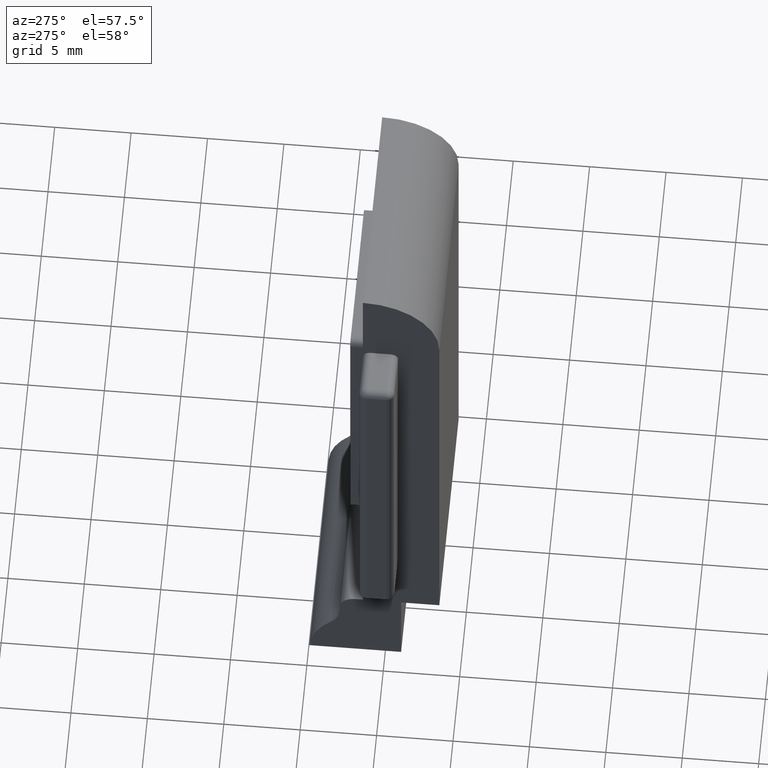
[diagram: clean part render]
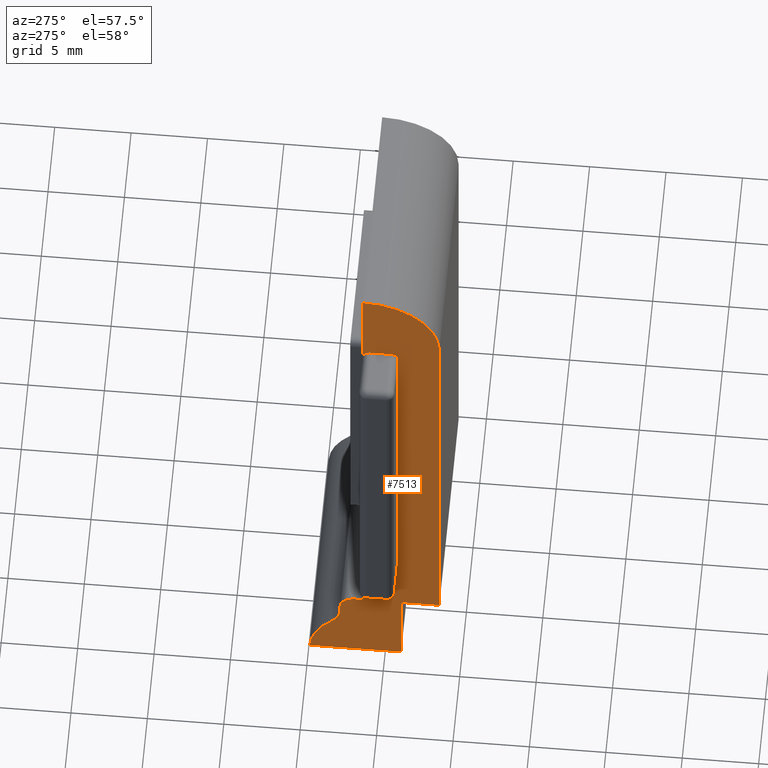
[diagram: same view with one face highlighted and labeled with its STEP entity id]
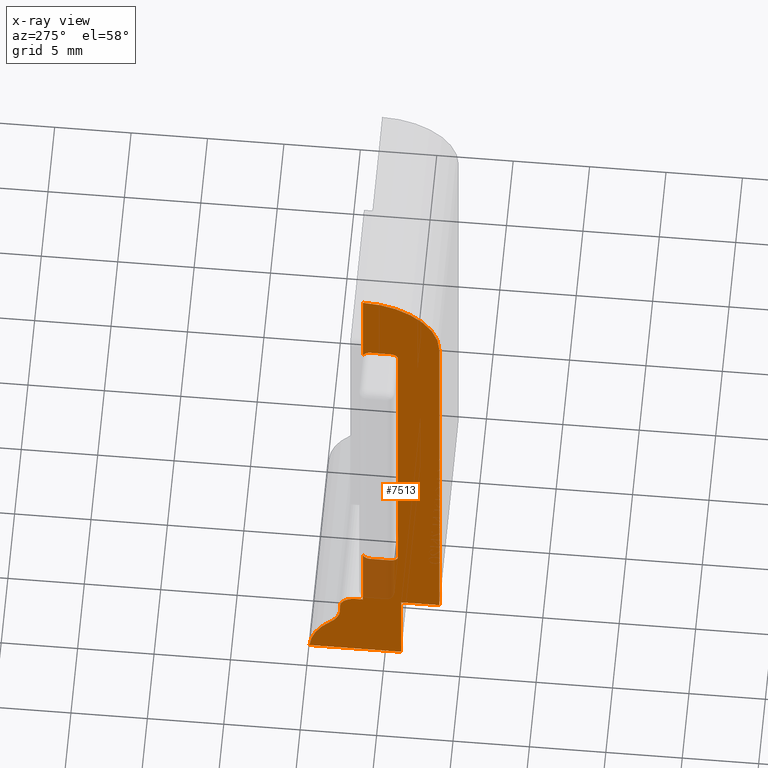
[diagram: x-ray of the same camera — body ghosted, the highlighted face saturated]
A machine part, auxiliary view. The second image highlights one B-rep face of the part: STEP entity #7513.
The next image is the same camera in x-ray: the body ghosted, the highlighted face saturated — about 7% of this face is hidden behind the body in this view.
In plain terms, the highlighted planar face has unit normal (1, 0, 0).
Its self-contained STEP definition (entity closure, byte-faithful):
#55 = ORIENTED_EDGE ( 'NONE', *, *, #7078, .T. ) ;
#157 = DIRECTION ( 'NONE',  ( 1.000000000000000000, 0.0000000000000000000, 0.0000000000000000000 ) ) ;
#255 = DIRECTION ( 'NONE',  ( 0.0000000000000000000, 0.0000000000000000000, -1.000000000000000000 ) ) ;
#313 = ORIENTED_EDGE ( 'NONE', *, *, #2884, .F. ) ;
#343 = VECTOR ( 'NONE', #1412, 1000.000000000000000 ) ;
#359 = DIRECTION ( 'NONE',  ( 1.000000000000000000, 0.0000000000000000000, 0.0000000000000000000 ) ) ;
#538 = ORIENTED_EDGE ( 'NONE', *, *, #8498, .F. ) ;
#548 = DIRECTION ( 'NONE',  ( 0.0000000000000000000, 0.0000000000000000000, -1.000000000000000000 ) ) ;
#563 = AXIS2_PLACEMENT_3D ( 'NONE', #7805, #157, #7103 ) ;
#641 = VECTOR ( 'NONE', #1742, 1000.000000000000000 ) ;
#659 = VERTEX_POINT ( 'NONE', #5325 ) ;
#695 = LINE ( 'NONE', #6068, #343 ) ;
#714 = ORIENTED_EDGE ( 'NONE', *, *, #9389, .T. ) ;
#717 = EDGE_CURVE ( 'NONE', #3666, #1238, #2535, .T. ) ;
#791 = EDGE_CURVE ( 'NONE', #7744, #7770, #1812, .T. ) ;
#864 = AXIS2_PLACEMENT_3D ( 'NONE', #6398, #5722, #2604 ) ;
#875 = LINE ( 'NONE', #6339, #641 ) ;
#907 = AXIS2_PLACEMENT_3D ( 'NONE', #5302, #8624, #7884 ) ;
#960 = DIRECTION ( 'NONE',  ( 0.0000000000000000000, 0.0000000000000000000, 1.000000000000000000 ) ) ;
#1043 = FACE_OUTER_BOUND ( 'NONE', #4267, .T. ) ;
#1160 = VECTOR ( 'NONE', #2141, 1000.000000000000000 ) ;
#1238 = VERTEX_POINT ( 'NONE', #4586 ) ;
#1304 = CIRCLE ( 'NONE', #907, 5.000000000000004400 ) ;
#1412 = DIRECTION ( 'NONE',  ( 0.0000000000000000000, -1.000000000000000000, 0.0000000000000000000 ) ) ;
#1530 = CARTESIAN_POINT ( 'NONE',  ( 0.0000000000000000000, -5.000000000000004400, 0.0000000000000000000 ) ) ;
#1569 = ORIENTED_EDGE ( 'NONE', *, *, #1634, .F. ) ;
#1634 = EDGE_CURVE ( 'NONE', #5099, #4111, #875, .T. ) ;
#1728 = CARTESIAN_POINT ( 'NONE',  ( 0.0000000000000000000, -2.300000000000002900, 4.999999999999997300 ) ) ;
#1742 = DIRECTION ( 'NONE',  ( -0.0000000000000000000, -1.224646799147353200E-016, 1.000000000000000000 ) ) ;
#1794 = LINE ( 'NONE', #2497, #7046 ) ;
#1812 = LINE ( 'NONE', #6222, #9725 ) ;
#1856 = CARTESIAN_POINT ( 'NONE',  ( 0.0000000000000000000, 2.116967167152068500, -2.964465433511271500 ) ) ;
#1992 = VERTEX_POINT ( 'NONE', #3058 ) ;
#2001 = LINE ( 'NONE', #3443, #2115 ) ;
#2008 = VERTEX_POINT ( 'NONE', #3836 ) ;
#2092 = LINE ( 'NONE', #5229, #5689 ) ;
#2114 = CARTESIAN_POINT ( 'NONE',  ( 0.0000000000000000000, -5.000000000000004400, 0.0000000000000000000 ) ) ;
#2115 = VECTOR ( 'NONE', #2590, 1000.000000000000000 ) ;
#2128 = CARTESIAN_POINT ( 'NONE',  ( 0.0000000000000000000, -6.505213034913026600E-016, 5.499999999999998200 ) ) ;
#2141 = DIRECTION ( 'NONE',  ( 0.0000000000000000000, 1.000000000000000000, 0.0000000000000000000 ) ) ;
#2172 = CARTESIAN_POINT ( 'NONE',  ( 0.0000000000000000000, -2.300000000000002900, 30.00000000000000000 ) ) ;
#2191 = CARTESIAN_POINT ( 'NONE',  ( 0.0000000000000000000, -0.5000000000000007800, 5.499999999999998200 ) ) ;
#2406 = VERTEX_POINT ( 'NONE', #9080 ) ;
#2466 = DIRECTION ( 'NONE',  ( 0.0000000000000000000, 0.0000000000000000000, -1.000000000000000000 ) ) ;
#2497 = CARTESIAN_POINT ( 'NONE',  ( 0.0000000000000000000, -2.500000000000004400, 0.0000000000000000000 ) ) ;
#2528 = VECTOR ( 'NONE', #6272, 1000.000000000000000 ) ;
#2535 = LINE ( 'NONE', #1530, #5784 ) ;
#2590 = DIRECTION ( 'NONE',  ( 0.0000000000000000000, 0.0000000000000000000, 1.000000000000000000 ) ) ;
#2604 = DIRECTION ( 'NONE',  ( 0.0000000000000000000, 0.0000000000000000000, -1.000000000000000000 ) ) ;
#2772 = EDGE_CURVE ( 'NONE', #6245, #3666, #9351, .T. ) ;
#2884 = EDGE_CURVE ( 'NONE', #5485, #9021, #3267, .T. ) ;
#2927 = DIRECTION ( 'NONE',  ( 1.000000000000000000, 0.0000000000000000000, 0.0000000000000000000 ) ) ;
#3037 = ORIENTED_EDGE ( 'NONE', *, *, #2772, .F. ) ;
#3058 = CARTESIAN_POINT ( 'NONE',  ( 0.0000000000000000000, -2.300000000000002900, 29.50000000000000000 ) ) ;
#3168 = VERTEX_POINT ( 'NONE', #1856 ) ;
#3177 = CIRCLE ( 'NONE', #9385, 0.5000000000000004400 ) ;
#3267 = LINE ( 'NONE', #3336, #6839 ) ;
#3272 = CARTESIAN_POINT ( 'NONE',  ( 0.0000000000000000000, -5.000000000000004400, 30.99999999999999300 ) ) ;
#3291 = CARTESIAN_POINT ( 'NONE',  ( 0.0000000000000000000, 0.4999999999999952300, -1.000000000000000900 ) ) ;
#3336 = CARTESIAN_POINT ( 'NONE',  ( 0.0000000000000000000, -2.500000000000004400, -5.999999999999998200 ) ) ;
#3350 = ORIENTED_EDGE ( 'NONE', *, *, #3708, .T. ) ;
#3443 = CARTESIAN_POINT ( 'NONE',  ( 0.0000000000000000000, 1.499999999999995300, -2.469999999999999800 ) ) ;
#3452 = VERTEX_POINT ( 'NONE', #5421 ) ;
#3507 = CARTESIAN_POINT ( 'NONE',  ( 0.0000000000000000000, 1.499999999999995300, -1.000000000000000900 ) ) ;
#3521 = EDGE_CURVE ( 'NONE', #659, #1992, #3739, .T. ) ;
#3550 = EDGE_CURVE ( 'NONE', #1238, #5485, #1794, .T. ) ;
#3552 = VERTEX_POINT ( 'NONE', #9316 ) ;
#3666 = VERTEX_POINT ( 'NONE', #2114 ) ;
#3708 = EDGE_CURVE ( 'NONE', #3168, #9021, #6477, .T. ) ;
#3739 = LINE ( 'NONE', #1728, #9330 ) ;
#3825 = DIRECTION ( 'NONE',  ( 1.000000000000000000, 0.0000000000000000000, 0.0000000000000000000 ) ) ;
#3836 = CARTESIAN_POINT ( 'NONE',  ( 0.0000000000000000000, -1.800000000000002900, 4.999999999999997300 ) ) ;
#3861 = CARTESIAN_POINT ( 'NONE',  ( 0.0000000000000000000, -0.5000000000000007800, 4.999999999999997300 ) ) ;
#3911 = DIRECTION ( 'NONE',  ( 0.0000000000000000000, 0.0000000000000000000, 1.000000000000000000 ) ) ;
#3938 = CARTESIAN_POINT ( 'NONE',  ( 0.0000000000000000000, -4.336808689942017700E-015, 36.00000000000000000 ) ) ;
#4111 = VERTEX_POINT ( 'NONE', #2128 ) ;
#4267 = EDGE_LOOP ( 'NONE', ( #538, #6454, #4446, #9861, #3350, #313, #4477, #6780, #3037, #9526, #4450, #4574, #6767, #7637, #5497, #55, #9477, #714, #1569 ) ) ;
#4446 = ORIENTED_EDGE ( 'NONE', *, *, #5620, .F. ) ;
#4450 = ORIENTED_EDGE ( 'NONE', *, *, #791, .F. ) ;
#4477 = ORIENTED_EDGE ( 'NONE', *, *, #3550, .F. ) ;
#4506 = CIRCLE ( 'NONE', #6002, 1.000000000000000000 ) ;
#4523 = DIRECTION ( 'NONE',  ( 0.0000000000000000000, 0.0000000000000000000, -1.000000000000000000 ) ) ;
#4574 = ORIENTED_EDGE ( 'NONE', *, *, #8862, .T. ) ;
#4586 = CARTESIAN_POINT ( 'NONE',  ( 0.0000000000000000000, -2.500000000000004400, 0.0000000000000000000 ) ) ;
#4623 = CARTESIAN_POINT ( 'NONE',  ( 0.0000000000000000000, 3.499999999999995100, -1.519743943650807300 ) ) ;
#4746 = CIRCLE ( 'NONE', #864, 0.5000000000000004400 ) ;
#4774 = EDGE_CURVE ( 'NONE', #7770, #6245, #1304, .T. ) ;
#4798 = EDGE_CURVE ( 'NONE', #9706, #2008, #695, .T. ) ;
#4891 = CIRCLE ( 'NONE', #6816, 2.000000000000000000 ) ;
#4915 = CARTESIAN_POINT ( 'NONE',  ( 0.0000000000000000000, 0.0000000000000000000, 30.99999999999999300 ) ) ;
#5099 = VERTEX_POINT ( 'NONE', #9566 ) ;
#5206 = CIRCLE ( 'NONE', #563, 0.5000000000000004400 ) ;
#5229 = CARTESIAN_POINT ( 'NONE',  ( 0.0000000000000000000, 1.499999999999995300, 0.0000000000000000000 ) ) ;
#5302 = CARTESIAN_POINT ( 'NONE',  ( 0.0000000000000000000, 0.0000000000000000000, 30.99999999999999300 ) ) ;
#5323 = EDGE_CURVE ( 'NONE', #2406, #3168, #4891, .T. ) ;
#5325 = CARTESIAN_POINT ( 'NONE',  ( 0.0000000000000000000, -2.300000000000002900, 5.499999999999998200 ) ) ;
#5399 = VERTEX_POINT ( 'NONE', #6117 ) ;
#5421 = CARTESIAN_POINT ( 'NONE',  ( 0.0000000000000000000, -0.5000000000000036600, 30.00000000000000000 ) ) ;
#5485 = VERTEX_POINT ( 'NONE', #9240 ) ;
#5497 = ORIENTED_EDGE ( 'NONE', *, *, #3521, .F. ) ;
#5616 = PLANE ( 'NONE',  #8089 ) ;
#5620 = EDGE_CURVE ( 'NONE', #2406, #7040, #2001, .T. ) ;
#5689 = VECTOR ( 'NONE', #9870, 1000.000000000000000 ) ;
#5722 = DIRECTION ( 'NONE',  ( 1.000000000000000000, 0.0000000000000000000, 0.0000000000000000000 ) ) ;
#5739 = DIRECTION ( 'NONE',  ( 0.0000000000000000000, 1.000000000000000000, 0.0000000000000000000 ) ) ;
#5784 = VECTOR ( 'NONE', #6033, 1000.000000000000000 ) ;
#5839 = CARTESIAN_POINT ( 'NONE',  ( 0.0000000000000000000, -1.800000000000002900, 5.499999999999998200 ) ) ;
#6002 = AXIS2_PLACEMENT_3D ( 'NONE', #3291, #8554, #2466 ) ;
#6025 = DIRECTION ( 'NONE',  ( 0.0000000000000000000, 0.0000000000000000000, -1.000000000000000000 ) ) ;
#6033 = DIRECTION ( 'NONE',  ( 0.0000000000000000000, 1.000000000000000000, 0.0000000000000000000 ) ) ;
#6068 = CARTESIAN_POINT ( 'NONE',  ( 0.0000000000000000000, -3.035766082959412400E-015, 4.999999999999997300 ) ) ;
#6117 = CARTESIAN_POINT ( 'NONE',  ( 0.0000000000000000000, 0.4999999999999952300, 0.0000000000000000000 ) ) ;
#6185 = LINE ( 'NONE', #2172, #1160 ) ;
#6222 = CARTESIAN_POINT ( 'NONE',  ( 0.0000000000000000000, -4.336808689942017700E-015, 36.00000000000000000 ) ) ;
#6245 = VERTEX_POINT ( 'NONE', #7771 ) ;
#6272 = DIRECTION ( 'NONE',  ( 0.0000000000000000000, 0.0000000000000000000, -1.000000000000000000 ) ) ;
#6339 = CARTESIAN_POINT ( 'NONE',  ( 0.0000000000000000000, -4.336808689942017700E-015, 36.00000000000000000 ) ) ;
#6398 = CARTESIAN_POINT ( 'NONE',  ( 0.0000000000000000000, -0.5000000000000036600, 29.50000000000000000 ) ) ;
#6454 = ORIENTED_EDGE ( 'NONE', *, *, #8776, .T. ) ;
#6477 = CIRCLE ( 'NONE', #6561, 4.500000000000000900 ) ;
#6561 = AXIS2_PLACEMENT_3D ( 'NONE', #6919, #7585, #3911 ) ;
#6767 = ORIENTED_EDGE ( 'NONE', *, *, #8473, .F. ) ;
#6780 = ORIENTED_EDGE ( 'NONE', *, *, #717, .F. ) ;
#6816 = AXIS2_PLACEMENT_3D ( 'NONE', #4623, #9079, #4523 ) ;
#6839 = VECTOR ( 'NONE', #5739, 1000.000000000000000 ) ;
#6919 = CARTESIAN_POINT ( 'NONE',  ( 0.0000000000000000000, -0.9948567067557664300, -6.215088785697316700 ) ) ;
#7040 = VERTEX_POINT ( 'NONE', #3507 ) ;
#7046 = VECTOR ( 'NONE', #8511, 1000.000000000000000 ) ;
#7078 = EDGE_CURVE ( 'NONE', #659, #2008, #9781, .T. ) ;
#7103 = DIRECTION ( 'NONE',  ( 0.0000000000000000000, 0.0000000000000000000, -1.000000000000000000 ) ) ;
#7410 = CARTESIAN_POINT ( 'NONE',  ( 0.0000000000000000000, 3.499999999999996000, -5.999999999999998200 ) ) ;
#7513 = ADVANCED_FACE ( 'NONE', ( #1043 ), #5616, .F. ) ;
#7585 = DIRECTION ( 'NONE',  ( -1.000000000000000000, -0.0000000000000000000, 0.0000000000000000000 ) ) ;
#7637 = ORIENTED_EDGE ( 'NONE', *, *, #9720, .T. ) ;
#7744 = VERTEX_POINT ( 'NONE', #9396 ) ;
#7770 = VERTEX_POINT ( 'NONE', #3938 ) ;
#7771 = CARTESIAN_POINT ( 'NONE',  ( 0.0000000000000000000, -5.000000000000002700, 30.99999999999999300 ) ) ;
#7805 = CARTESIAN_POINT ( 'NONE',  ( 0.0000000000000000000, -1.800000000000002900, 29.50000000000000000 ) ) ;
#7884 = DIRECTION ( 'NONE',  ( 0.0000000000000000000, 0.0000000000000000000, -1.000000000000000000 ) ) ;
#8089 = AXIS2_PLACEMENT_3D ( 'NONE', #4915, #359, #255 ) ;
#8473 = EDGE_CURVE ( 'NONE', #3552, #3452, #6185, .T. ) ;
#8498 = EDGE_CURVE ( 'NONE', #5399, #5099, #2092, .T. ) ;
#8511 = DIRECTION ( 'NONE',  ( 0.0000000000000000000, 0.0000000000000000000, -1.000000000000000000 ) ) ;
#8554 = DIRECTION ( 'NONE',  ( -1.000000000000000000, -0.0000000000000000000, -0.0000000000000000000 ) ) ;
#8624 = DIRECTION ( 'NONE',  ( 1.000000000000000000, 0.0000000000000000000, 0.0000000000000000000 ) ) ;
#8776 = EDGE_CURVE ( 'NONE', #5399, #7040, #4506, .T. ) ;
#8862 = EDGE_CURVE ( 'NONE', #7744, #3452, #4746, .T. ) ;
#8992 = AXIS2_PLACEMENT_3D ( 'NONE', #5839, #2927, #548 ) ;
#9021 = VERTEX_POINT ( 'NONE', #7410 ) ;
#9079 = DIRECTION ( 'NONE',  ( 1.000000000000000000, 0.0000000000000000000, 0.0000000000000000000 ) ) ;
#9080 = CARTESIAN_POINT ( 'NONE',  ( 0.0000000000000000000, 1.499999999999995300, -1.519743943650807300 ) ) ;
#9240 = CARTESIAN_POINT ( 'NONE',  ( 0.0000000000000000000, -2.500000000000004400, -5.999999999999998200 ) ) ;
#9281 = DIRECTION ( 'NONE',  ( -0.0000000000000000000, -1.224646799147353200E-016, 1.000000000000000000 ) ) ;
#9316 = CARTESIAN_POINT ( 'NONE',  ( 0.0000000000000000000, -1.800000000000002900, 30.00000000000000000 ) ) ;
#9330 = VECTOR ( 'NONE', #960, 1000.000000000000000 ) ;
#9351 = LINE ( 'NONE', #3272, #2528 ) ;
#9385 = AXIS2_PLACEMENT_3D ( 'NONE', #2191, #3825, #6025 ) ;
#9389 = EDGE_CURVE ( 'NONE', #9706, #4111, #3177, .T. ) ;
#9396 = CARTESIAN_POINT ( 'NONE',  ( 0.0000000000000000000, -3.686287386450715100E-015, 29.50000000000000000 ) ) ;
#9477 = ORIENTED_EDGE ( 'NONE', *, *, #4798, .F. ) ;
#9526 = ORIENTED_EDGE ( 'NONE', *, *, #4774, .F. ) ;
#9566 = CARTESIAN_POINT ( 'NONE',  ( 0.0000000000000000000, 0.0000000000000000000, 0.0000000000000000000 ) ) ;
#9706 = VERTEX_POINT ( 'NONE', #3861 ) ;
#9720 = EDGE_CURVE ( 'NONE', #3552, #1992, #5206, .T. ) ;
#9725 = VECTOR ( 'NONE', #9281, 1000.000000000000000 ) ;
#9781 = CIRCLE ( 'NONE', #8992, 0.5000000000000004400 ) ;
#9861 = ORIENTED_EDGE ( 'NONE', *, *, #5323, .T. ) ;
#9870 = DIRECTION ( 'NONE',  ( 0.0000000000000000000, -1.000000000000000000, 0.0000000000000000000 ) ) ;